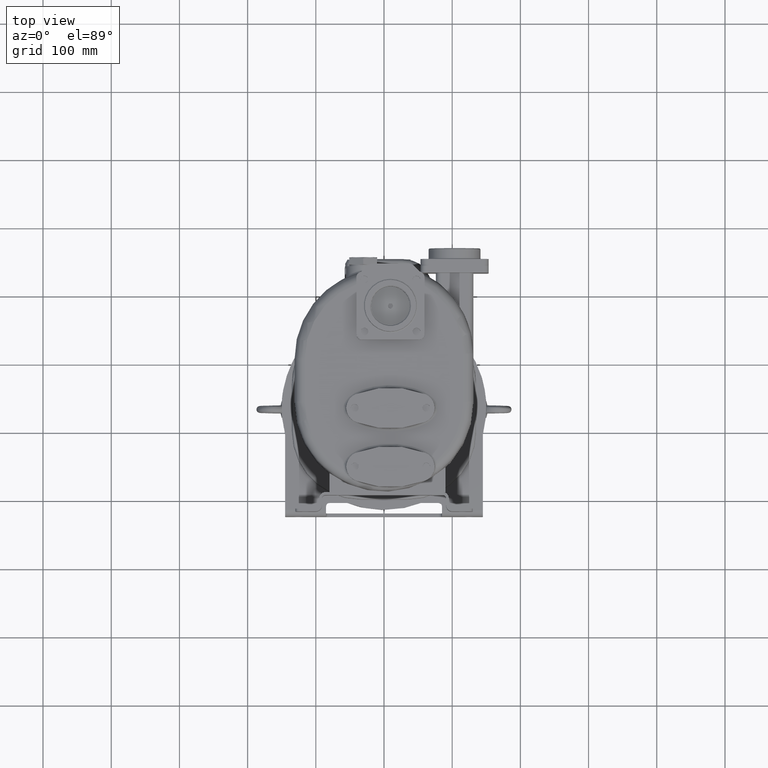
[diagram: clean part render]
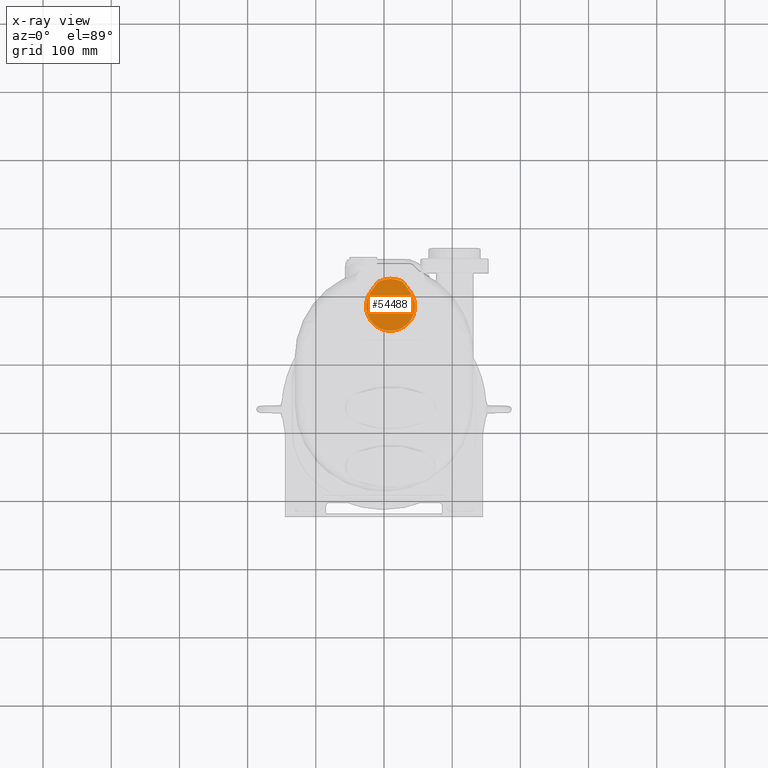
[diagram: x-ray — body ghosted, one internal face saturated and labeled with its STEP entity id]
A machine part, top view, then the same camera in x-ray: the body is ghosted and one INTERNAL B-rep face — a face not visible from any outside direction — is saturated and labeled: STEP entity #54488.
In plain terms, the highlighted planar face has unit normal (0, -0.0698, 0.9976).
Its self-contained STEP definition (entity closure, byte-faithful):
#1543=DIRECTION('',(5.948227867513E-1,8.018987057065E-1,5.607421999168E-2));
#1544=VECTOR('',#1543,1.815993302061E1);
#1545=CARTESIAN_POINT('',(-1.943884698222E1,2.915274959344E2,9.964567556438E1));
#1546=LINE('',#1545,#1544);
#1547=CARTESIAN_POINT('',(9.5E0,2.701660381143E2,9.815193692055E1));
#1548=DIRECTION('',(0.E0,-6.975647374412E-2,9.975640502598E-1));
#1549=DIRECTION('',(-8.038568606172E-1,5.933738283385E-1,4.149274010643E-2));
#1550=AXIS2_PLACEMENT_3D('',#1547,#1548,#1549);
#1552=DIRECTION('',(5.948227867513E-1,-8.018987057065E-1,-5.607421999168E-2));
#1553=VECTOR('',#1552,1.815993302061E1);
#1554=CARTESIAN_POINT('',(2.763690501568E1,3.060899227194E2,1.006639796436E2));
#1555=LINE('',#1554,#1553);
#1556=CARTESIAN_POINT('',(9.5E0,2.711636021645E2,9.822169339429E1));
#1557=DIRECTION('',(0.E0,6.975647374412E-2,-9.975640502598E-1));
#1558=DIRECTION('',(1.E0,-1.624097681737E-14,0.E0));
#1559=AXIS2_PLACEMENT_3D('',#1556,#1557,#1558);
#1561=CARTESIAN_POINT('',(9.5E0,2.711636021645E2,9.822169339429E1));
#1562=DIRECTION('',(0.E0,6.975647374412E-2,-9.975640502598E-1));
#1563=DIRECTION('',(-1.E0,-1.624097681737E-14,0.E0));
#1564=AXIS2_PLACEMENT_3D('',#1561,#1562,#1563);
#1569=CARTESIAN_POINT('',(2.763690501568E1,3.060899227194E2,1.006639796436E2));
#1575=CARTESIAN_POINT('',(-8.636905015682E0,3.060899227194E2,1.006639796436E2));
#1580=CARTESIAN_POINT('',(-8.636905015682E0,3.060899227194E2,1.006639796436E2));
#1581=CARTESIAN_POINT('',(-7.125496264375E0,3.068711235553E2,1.007186065276E2));
#1582=CARTESIAN_POINT('',(-4.102678761762E0,3.081880606780E2,1.008106957421E2));
#1583=CARTESIAN_POINT('',(4.315474921589E-1,3.095386229360E2,1.009051362551E2));
#1584=CARTESIAN_POINT('',(4.965773746079E0,3.103270686556E2,1.009602697507E2));
#1585=CARTESIAN_POINT('',(9.5E0,3.105864656722E2,1.009784085571E2));
#1586=CARTESIAN_POINT('',(1.403422625392E1,3.103270686556E2,1.009602697507E2));
#1587=CARTESIAN_POINT('',(1.856845250784E1,3.095386229360E2,1.009051362551E2));
#1588=CARTESIAN_POINT('',(2.310267876176E1,3.081880606780E2,1.008106957421E2));
#1589=CARTESIAN_POINT('',(2.612549626438E1,3.068711235553E2,1.007186065276E2));
#1590=CARTESIAN_POINT('',(2.763690501568E1,3.060899227194E2,1.006639796436E2));
#44789=CARTESIAN_POINT('',(1.3E1,2.711636021645E2,9.822169339429E1));
#44790=CARTESIAN_POINT('',(6.E0,2.711636021645E2,9.822169339429E1));
#44791=VERTEX_POINT('',#44789);
#44792=VERTEX_POINT('',#44790);
#44793=CARTESIAN_POINT('',(-1.943884698222E1,2.915274959344E2,
9.964567556438E1));
#44794=CARTESIAN_POINT('',(3.843884698222E1,2.915274959344E2,9.964567556438E1));
#44795=VERTEX_POINT('',#44793);
#44796=VERTEX_POINT('',#44794);
#44867=VERTEX_POINT('',#1569);
#44868=VERTEX_POINT('',#1575);
#54469=CARTESIAN_POINT('',(9.5E0,2.711636021645E2,9.822169339429E1));
#54470=DIRECTION('',(0.E0,-6.975647374412E-2,9.975640502598E-1));
#54471=DIRECTION('',(-1.E0,0.E0,0.E0));
#54472=AXIS2_PLACEMENT_3D('',#54469,#54470,#54471);
#54473=PLANE('',#54472);
#54475=ORIENTED_EDGE('',*,*,#54474,.F.);
#54477=ORIENTED_EDGE('',*,*,#54476,.F.);
#54479=ORIENTED_EDGE('',*,*,#54478,.T.);
#54481=ORIENTED_EDGE('',*,*,#54480,.F.);
#54482=EDGE_LOOP('',(#54475,#54477,#54479,#54481));
#54483=FACE_OUTER_BOUND('',#54482,.F.);
#54484=ORIENTED_EDGE('',*,*,#54449,.T.);
#54485=ORIENTED_EDGE('',*,*,#54463,.T.);
#54486=EDGE_LOOP('',(#54484,#54485));
#54487=FACE_BOUND('',#54486,.F.);
#54488=ADVANCED_FACE('',(#54483,#54487),#54473,.F.);
#1551=CIRCLE('',#1550,3.6E1);
#1560=CIRCLE('',#1559,3.5E0);
#1565=CIRCLE('',#1564,3.5E0);
#1591=B_SPLINE_CURVE_WITH_KNOTS('',3,(#1580,#1581,#1582,#1583,#1584,#1585,#1586,
#1587,#1588,#1589,#1590),.UNSPECIFIED.,.F.,.F.,(4,1,1,1,1,1,1,1,4),(0.E0,
1.25E-1,2.5E-1,3.75E-1,5.E-1,6.25E-1,7.5E-1,8.75E-1,1.E0),.UNSPECIFIED.);
#54449=EDGE_CURVE('',#44791,#44792,#1560,.T.);
#54463=EDGE_CURVE('',#44792,#44791,#1565,.T.);
#54474=EDGE_CURVE('',#44868,#44867,#1591,.T.);
#54476=EDGE_CURVE('',#44795,#44868,#1546,.T.);
#54478=EDGE_CURVE('',#44795,#44796,#1551,.T.);
#54480=EDGE_CURVE('',#44867,#44796,#1555,.T.);